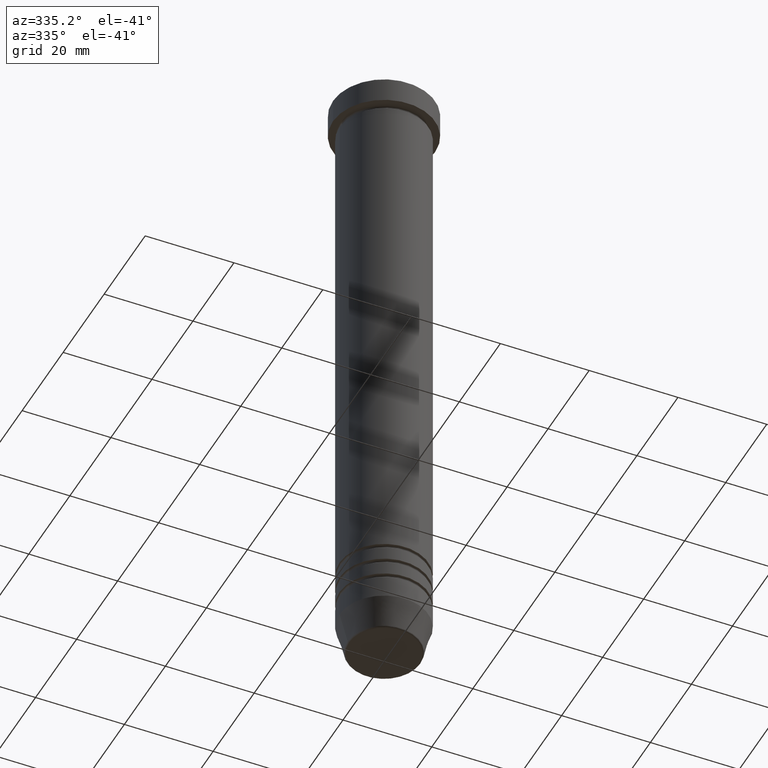
[diagram: clean part render]
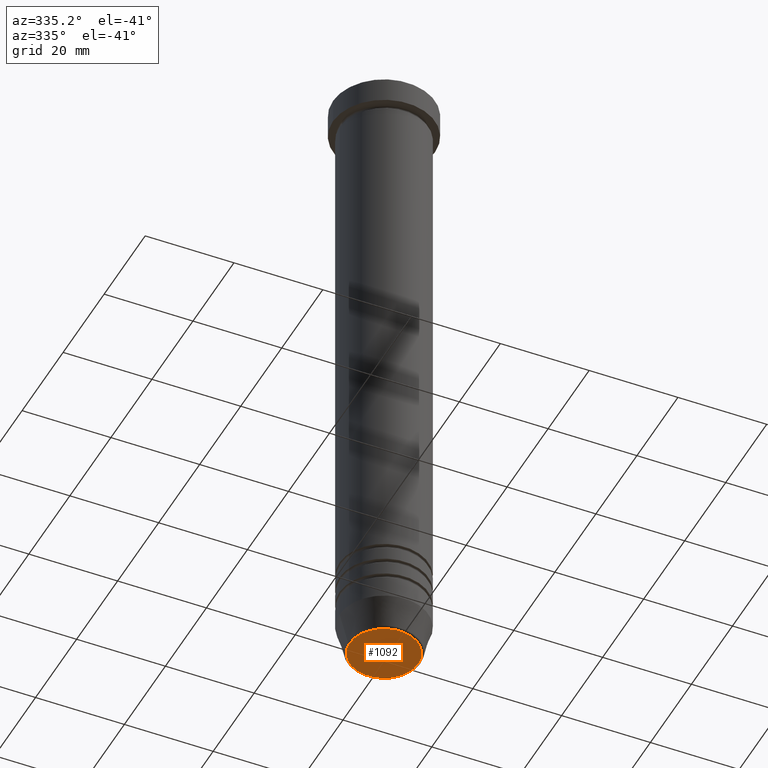
[diagram: same view with one face highlighted and labeled with its STEP entity id]
A machine part, auxiliary view. The second image highlights one B-rep face of the part: STEP entity #1092.
In plain terms, the highlighted planar face has unit normal (0, -0, 1).
Its self-contained STEP definition (entity closure, byte-faithful):
#42 = AXIS2_PLACEMENT_3D ( 'NONE', #107, #181, #454 ) ;
#107 = CARTESIAN_POINT ( 'NONE',  ( 0.000000000000000000, 0.000000000000000000, -146.0000000000000284 ) ) ;
#130 = EDGE_CURVE ( 'NONE', #899, #194, #721, .T. ) ;
#156 = CARTESIAN_POINT ( 'NONE',  ( -7.740692158992659166, 9.775343368540043079E-16, -146.0000000000000284 ) ) ;
#181 = DIRECTION ( 'NONE',  ( 0.000000000000000000, 0.000000000000000000, -1.000000000000000000 ) ) ;
#194 = VERTEX_POINT ( 'NONE', #918 ) ;
#228 = CARTESIAN_POINT ( 'NONE',  ( 0.000000000000000000, 1.059319481262460767E-14, -146.0000000000000284 ) ) ;
#256 = EDGE_CURVE ( 'NONE', #194, #899, #522, .T. ) ;
#349 = EDGE_LOOP ( 'NONE', ( #523, #392 ) ) ;
#392 = ORIENTED_EDGE ( 'NONE', *, *, #130, .T. ) ;
#454 = DIRECTION ( 'NONE',  ( 1.000000000000000000, 0.000000000000000000, 0.000000000000000000 ) ) ;
#493 = DIRECTION ( 'NONE',  ( 1.000000000000000000, 0.000000000000000000, 0.000000000000000000 ) ) ;
#503 = DIRECTION ( 'NONE',  ( 0.000000000000000000, -0.000000000000000000, 1.000000000000000000 ) ) ;
#522 = CIRCLE ( 'NONE', #992, 7.740692158992659166 ) ;
#523 = ORIENTED_EDGE ( 'NONE', *, *, #256, .T. ) ;
#654 = FACE_OUTER_BOUND ( 'NONE', #349, .T. ) ;
#659 = PLANE ( 'NONE',  #944 ) ;
#721 = CIRCLE ( 'NONE', #42, 7.740692158992659166 ) ;
#899 = VERTEX_POINT ( 'NONE', #156 ) ;
#918 = CARTESIAN_POINT ( 'NONE',  ( 7.740692158992659166, 0.000000000000000000, -146.0000000000000284 ) ) ;
#943 = DIRECTION ( 'NONE',  ( 0.000000000000000000, 0.000000000000000000, -1.000000000000000000 ) ) ;
#944 = AXIS2_PLACEMENT_3D ( 'NONE', #228, #503, #1124 ) ;
#992 = AXIS2_PLACEMENT_3D ( 'NONE', #1032, #943, #493 ) ;
#1032 = CARTESIAN_POINT ( 'NONE',  ( 0.000000000000000000, 0.000000000000000000, -146.0000000000000284 ) ) ;
#1092 = ADVANCED_FACE ( 'NONE', ( #654 ), #659, .F. ) ;
#1124 = DIRECTION ( 'NONE',  ( 1.000000000000000000, 0.000000000000000000, 0.000000000000000000 ) ) ;